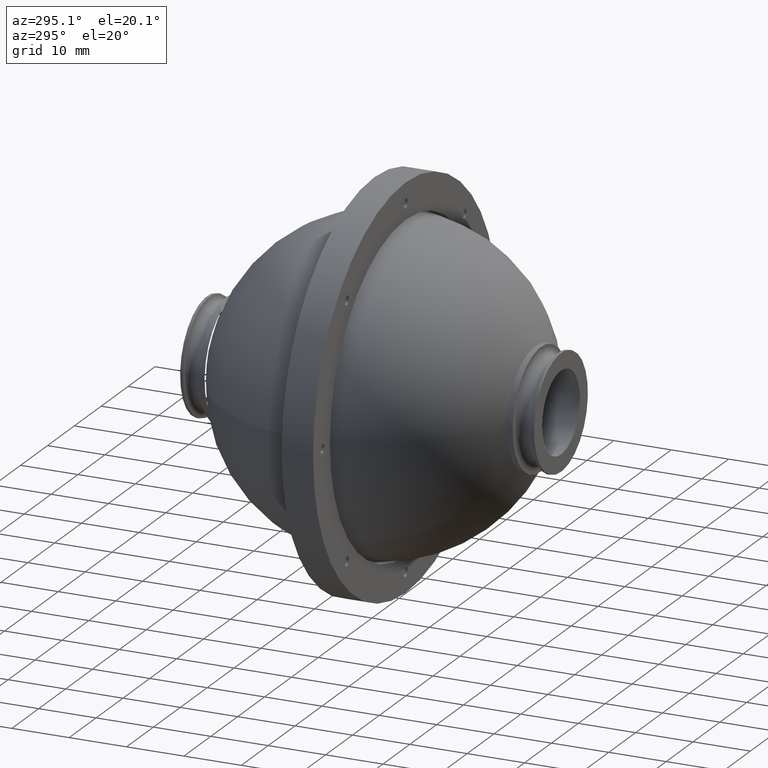
[diagram: clean part render]
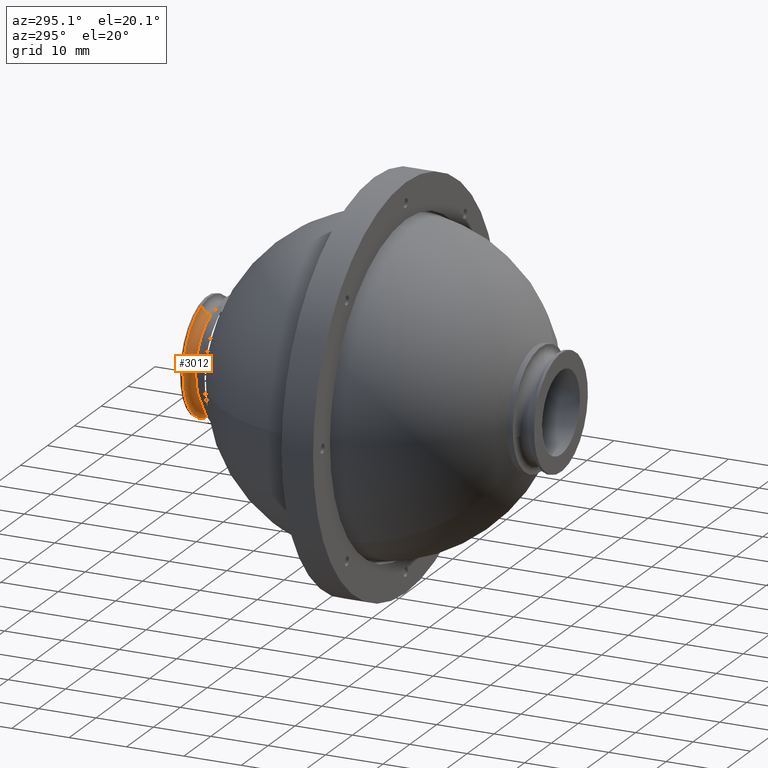
[diagram: same view with one face highlighted and labeled with its STEP entity id]
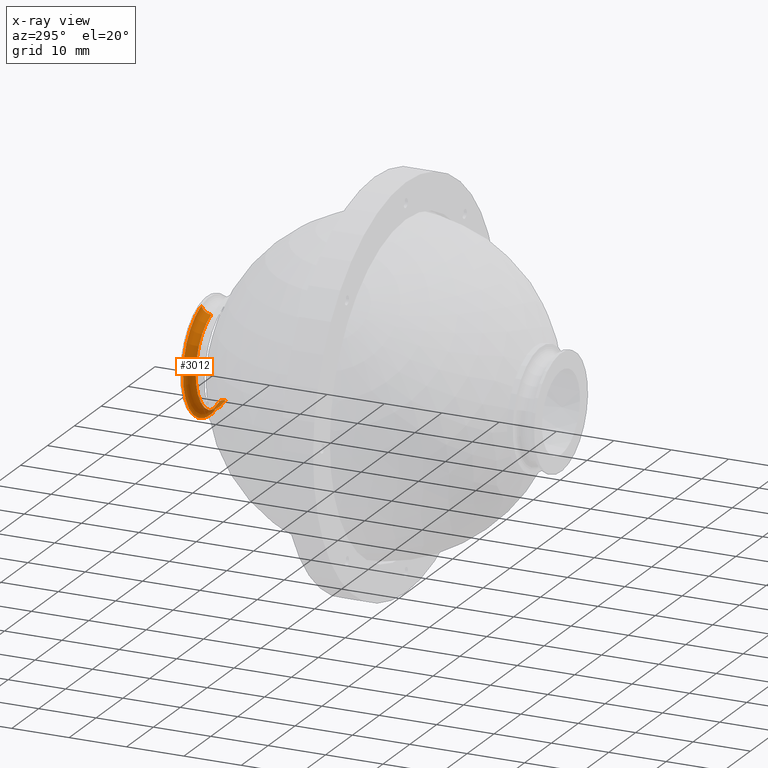
[diagram: x-ray of the same camera — body ghosted, the highlighted face saturated]
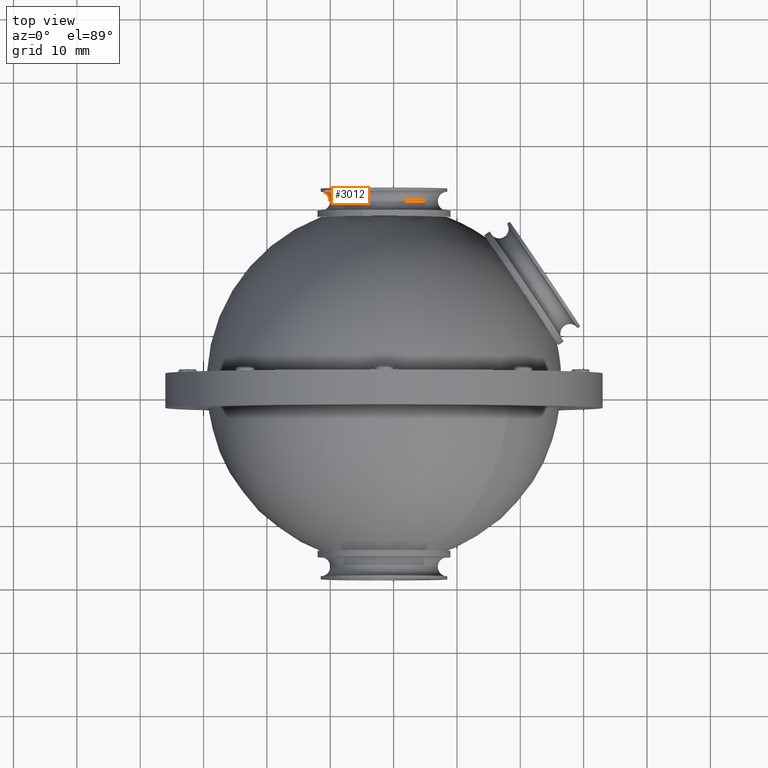
[diagram: same view with one face highlighted and labeled with its STEP entity id]
A machine part, auxiliary view. The second image highlights one B-rep face of the part: STEP entity #3012.
The next image is the same camera in x-ray: the body ghosted, the highlighted face saturated — about 4% of this face is hidden behind the body in this view.
A second angle (top view) of the same face is appended — the face is thin or edge-on in the first view.
In plain terms, the highlighted toroidal blend (fillet) surface has major radius 10 mm and minor (blend) radius 1.5 mm.
Its self-contained STEP definition (entity closure, byte-faithful):
#221 = VERTEX_POINT ( 'NONE', #1997 ) ;
#277 = DIRECTION ( 'NONE',  ( 1.000000000000000000, 3.673532066774416369E-15, 0.000000000000000000 ) ) ;
#572 = EDGE_CURVE ( 'NONE', #637, #4315, #2796, .T. ) ;
#637 = VERTEX_POINT ( 'NONE', #917 ) ;
#663 = TOROIDAL_SURFACE ( 'NONE', #2121, 10.00000000000000000, 1.500000000000002442 ) ;
#876 = AXIS2_PLACEMENT_3D ( 'NONE', #4356, #3280, #277 ) ;
#917 = CARTESIAN_POINT ( 'NONE',  ( 5.822025803179419867, 10.74252777405983572, 8.072409336026396431 ) ) ;
#1043 = DIRECTION ( 'NONE',  ( 0.3131756642857385642, 0.000000000000000000, -0.9496952160031060242 ) ) ;
#1218 = EDGE_CURVE ( 'NONE', #637, #2299, #2861, .T. ) ;
#1608 = ORIENTED_EDGE ( 'NONE', *, *, #572, .T. ) ;
#1646 = AXIS2_PLACEMENT_3D ( 'NONE', #4509, #2936, #1043 ) ;
#1665 = CARTESIAN_POINT ( 'NONE',  ( 8.484018949608200799, 10.74252777405984460, -3.598938027757831777E-29 ) ) ;
#1980 = DIRECTION ( 'NONE',  ( -3.736410698672505044E-15, 1.000000000000000000, 1.798101496593930860E-29 ) ) ;
#1997 = CARTESIAN_POINT ( 'NONE',  ( 11.61577559246558522, 12.24252777405985881, -9.496952160031058909 ) ) ;
#2016 = CARTESIAN_POINT ( 'NONE',  ( 5.352262306750805720, 12.24252777405983572, 9.496952160031058909 ) ) ;
#2121 = AXIS2_PLACEMENT_3D ( 'NONE', #1665, #6218, #4209 ) ;
#2299 = VERTEX_POINT ( 'NONE', #4163 ) ;
#2510 = CARTESIAN_POINT ( 'NONE',  ( 11.61577559246559055, 10.74252777405985526, -9.496952160031058909 ) ) ;
#2796 = CIRCLE ( 'NONE', #1646, 1.500000000000003331 ) ;
#2861 = CIRCLE ( 'NONE', #876, 8.499999999999996447 ) ;
#2936 = DIRECTION ( 'NONE',  ( 0.9496952160031061352, 3.548451365552095797E-15, 0.3131756642857388973 ) ) ;
#2951 = CARTESIAN_POINT ( 'NONE',  ( 8.484018949608195470, 12.24252777405984638, -9.017857828669314226E-30 ) ) ;
#3012 = ADVANCED_FACE ( 'NONE', ( #3945 ), #663, .F. ) ;
#3033 = DIRECTION ( 'NONE',  ( -0.3131756642857391193, 0.000000000000000000, 0.9496952160031059131 ) ) ;
#3280 = DIRECTION ( 'NONE',  ( 3.736410698672505044E-15, -1.000000000000000000, -1.798101496593930860E-29 ) ) ;
#3385 = AXIS2_PLACEMENT_3D ( 'NONE', #2510, #4045, #3033 ) ;
#3945 = FACE_OUTER_BOUND ( 'NONE', #4474, .T. ) ;
#4045 = DIRECTION ( 'NONE',  ( -0.9496952160031061352, -3.548451365552095797E-15, -0.3131756642857390083 ) ) ;
#4163 = CARTESIAN_POINT ( 'NONE',  ( 11.14601209603697995, 10.74252777405985526, -8.072409336026396431 ) ) ;
#4209 = DIRECTION ( 'NONE',  ( 0.3131756642857390083, 1.170152902601121084E-15, -0.9496952160031059131 ) ) ;
#4315 = VERTEX_POINT ( 'NONE', #2016 ) ;
#4356 = CARTESIAN_POINT ( 'NONE',  ( 8.484018949608200799, 10.74252777405984460, -3.598938027757831216E-29 ) ) ;
#4474 = EDGE_LOOP ( 'NONE', ( #5574, #1608, #5341, #5557 ) ) ;
#4509 = CARTESIAN_POINT ( 'NONE',  ( 5.352262306750811938, 10.74252777405983217, 9.496952160031058909 ) ) ;
#4639 = AXIS2_PLACEMENT_3D ( 'NONE', #2951, #1980, #5514 ) ;
#5027 = EDGE_CURVE ( 'NONE', #2299, #221, #5906, .T. ) ;
#5319 = EDGE_CURVE ( 'NONE', #221, #4315, #5692, .T. ) ;
#5341 = ORIENTED_EDGE ( 'NONE', *, *, #5319, .F. ) ;
#5514 = DIRECTION ( 'NONE',  ( 0.3131756642857390083, 1.214306433183764966E-15, -0.9496952160031059131 ) ) ;
#5557 = ORIENTED_EDGE ( 'NONE', *, *, #5027, .F. ) ;
#5574 = ORIENTED_EDGE ( 'NONE', *, *, #1218, .F. ) ;
#5692 = CIRCLE ( 'NONE', #4639, 10.00000000000000000 ) ;
#5906 = CIRCLE ( 'NONE', #3385, 1.500000000000003553 ) ;
#6218 = DIRECTION ( 'NONE',  ( 3.736410698672505044E-15, -1.000000000000000000, -1.798101496593930860E-29 ) ) ;